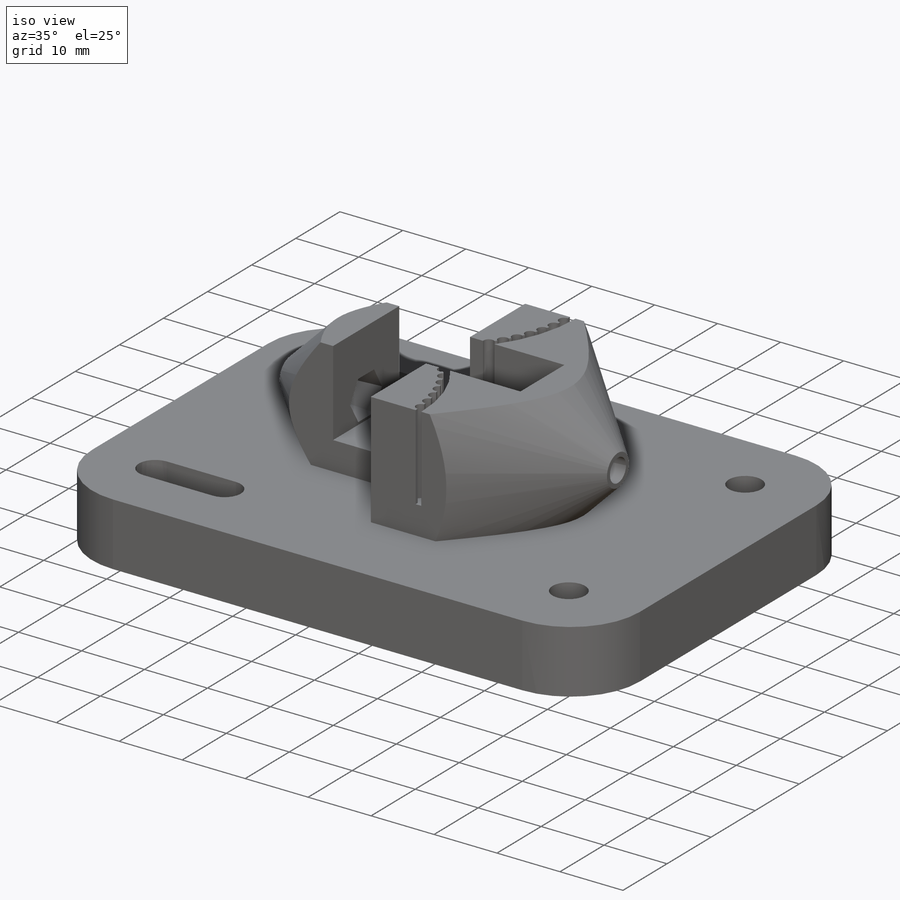
[diagram: iso view]
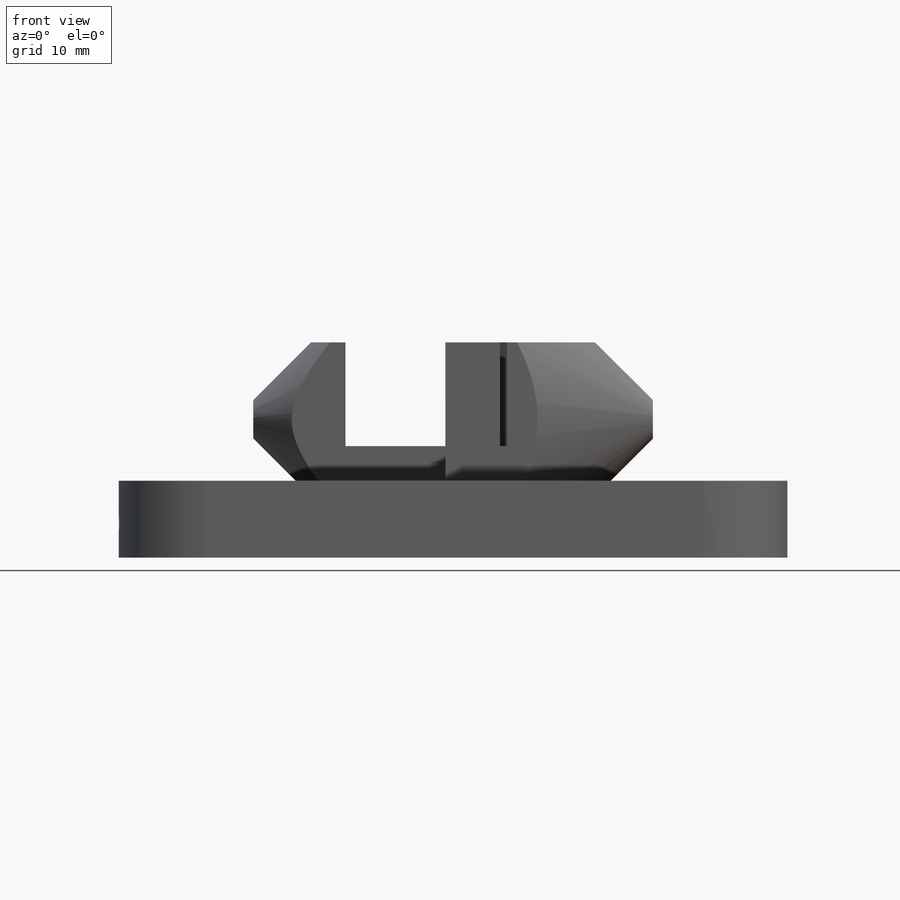
[diagram: front view]
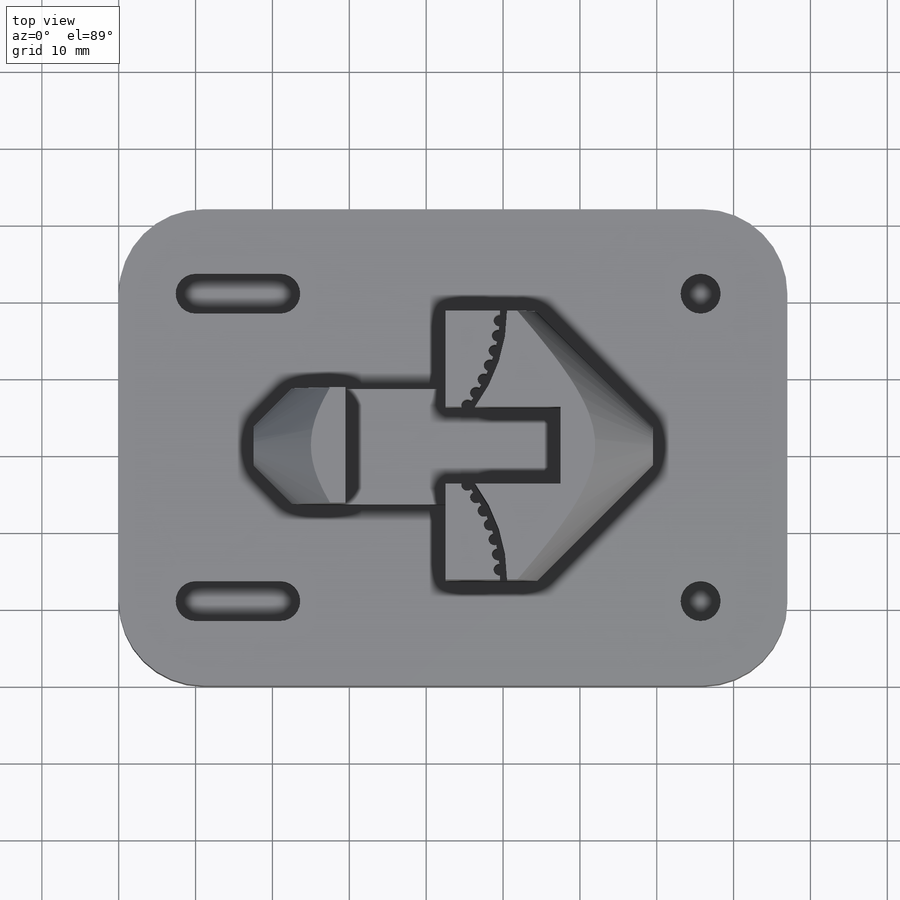
[diagram: top view]
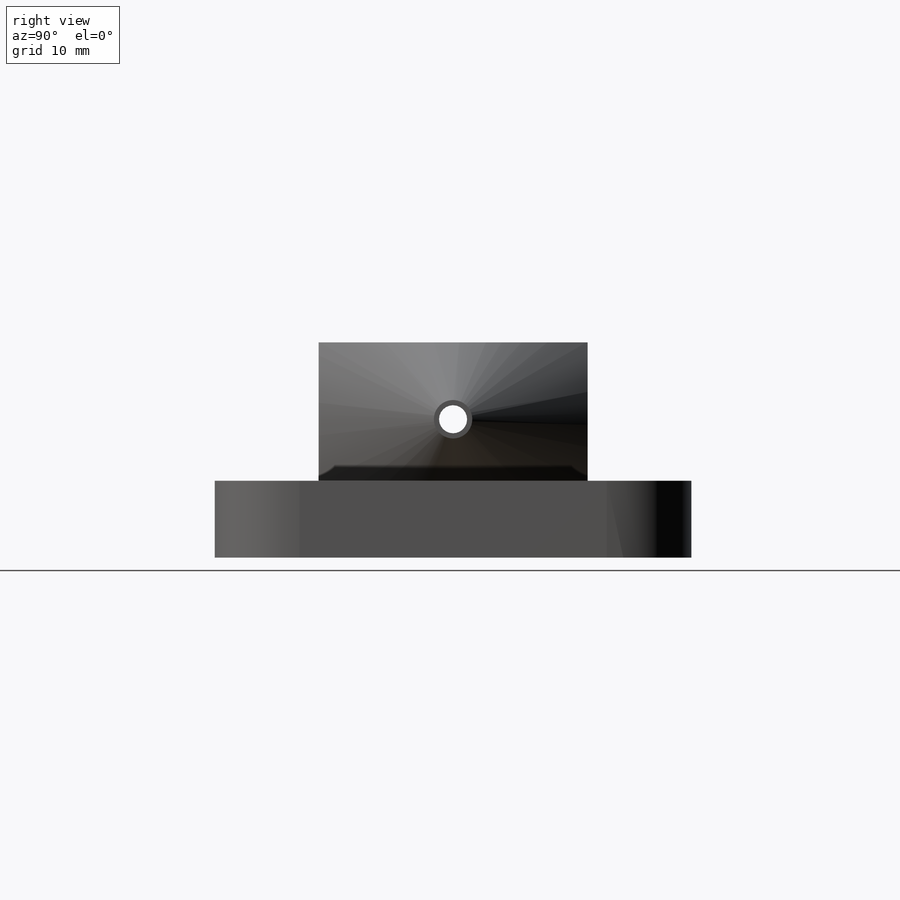
[diagram: right view]
SOLIDWORKS PART (.sldprt)
format: sldprt  version: not decoded by parser v0  size: 662,528 bytes
history: native  units: mm
features: sketch x13, cut_extrude x9, extrude x3, plane x2, material x1, cut_revolve x1, mirror x1 (+13 scaffold rows collapsed)
feature tree (43):
  scaffold x13  (default folders/planes/origin — collapsed)
  material  "ABS"
  sketch  "Sketch1"  dims[c1.D3=22.0mm c1.D1=87.0mm c1.D2=62.0mm c2.D1=87.0mm c2.D2=62.0mm]
  extrude  "Boss-Extrude1"  Depth=10mm
  plane  "Plane2"
  sketch  "Sketch2"  dims[c1.D1=52.0mm c1.D2=15.0mm c1.D3=15.0mm c1.D4=14.0mm c1.D5=10.0mm c1.D6=26.0mm c2.D4=1.0mm c2.D7=2.0mm]
  extrude  "Boss-Extrude3"  Depth=18mm
  plane  "Plane1"
  sketch  "Sketch3"  dims[c1.D1=2.5mm c1.D2=14.0mm c1.D3=11.0mm c1.D4=8.0mm c1.D5=~15.91383mm c2.D5=45.0deg c2.D2=18.0mm]
  cut_revolve  "Cut-Revolve3"  Angle=360deg
  sketch  "Sketch4"  dims[c1.D1=30.0mm c1.D2=15.0mm c1.D3=3.5mm c2.D2=30.8mm c2.D1=14.5mm c3.D2=29.0mm c3.D3=10.0mm c3.D4=10.0mm c4.D3=10.0mm]
  cut_extrude  "Cut-Extrude1"  Depth=13.5mm
  sketch  "Sketch17"  dims[D1=6.11mm D2=20.0mm D3=0.9mm]
  cut_extrude  "Cut-Extrude11"  [1 undecoded]
  sketch  "Sketch18"  dims[c1.D1=1.6mm c1.D2=1.6mm c1.D6=1.6mm c2.D2=1.3mm c2.D3=20.0mm c3.D2=20.0mm c4.D2=3.7deg c4.D5=5.73deg c4.D6=~19.905551mm c5.D6=3.7deg c5.D7=5.73deg c5.D4=7.0]
  cut_extrude  "Cut-Extrude12"  [1 undecoded]
  sketch  "Sketch8"  dims[c1.D1=5.2mm c1.D2=5.22mm c1.D3=5.2mm c1.D4=5.2mm c1.D5=5.2mm c2.D4=5.2mm c2.D6=5.2mm c2.D3=2.6mm c3.D4=5.2mm c3.D2=11.0mm c3.D3=11.0mm c4.D4=11.0mm c4.D5=11.0mm c5.D4=55.0mm c5.D6=11.0mm c5.D3=10.0mm c6.D4=32.2mm]
  cut_extrude  "Cut-Extrude5"  [1 undecoded]
  sketch  "Sketch9"  dims[D1=8.2mm D2=5.5mm D3=3.0mm D4=3.0mm]
  cut_extrude  "Cut-Extrude6"  Depth=5.4mm
  sketch  "Sketch11"  dims[D1=3.2mm]
  cut_extrude  "Cut-Extrude7"  [1 undecoded]
  sketch  "Sketch12"  dims[D1=5.5mm D2=5.5mm]
  cut_extrude  "Cut-Extrude8"  Depth=3mm
  sketch  "Sketch13"
  extrude  "Boss-Extrude4"  Depth=0.3mm
  sketch  "Sketch14"  dims[D1=3.65mm]
  cut_extrude  "Cut-Extrude9"  [1 undecoded]
  sketch  "Sketch15"  dims[D1=6.2mm]
  cut_extrude  "Cut-Extrude10"  Depth=4mm
  mirror  "Mirror1"
decode coverage: 20 of 27 modeling features carry decoded parameters
note: ~ marks probable driven/reference dimensions
note: 5 parameter values undecoded
summary: no parameter record found for 5 features
note: suppression state not decoded; provenance and decode notes live in map.json
